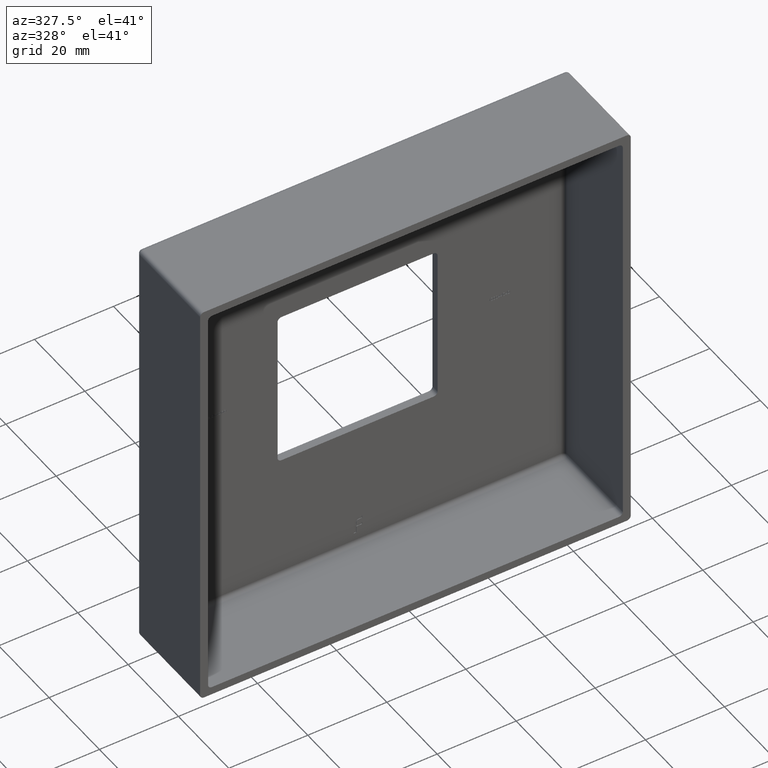
[diagram: clean part render]
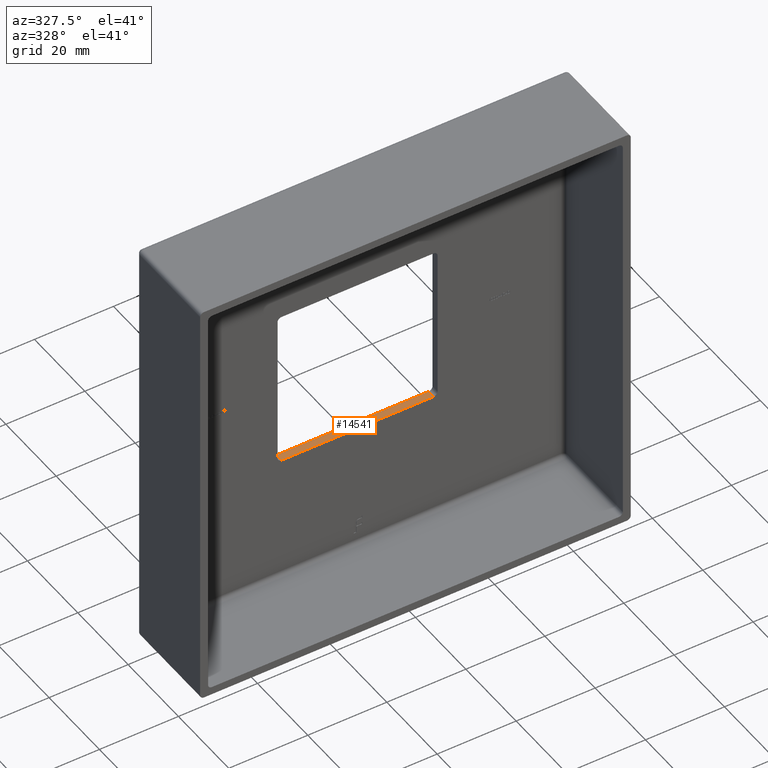
[diagram: same view with one face highlighted and labeled with its STEP entity id]
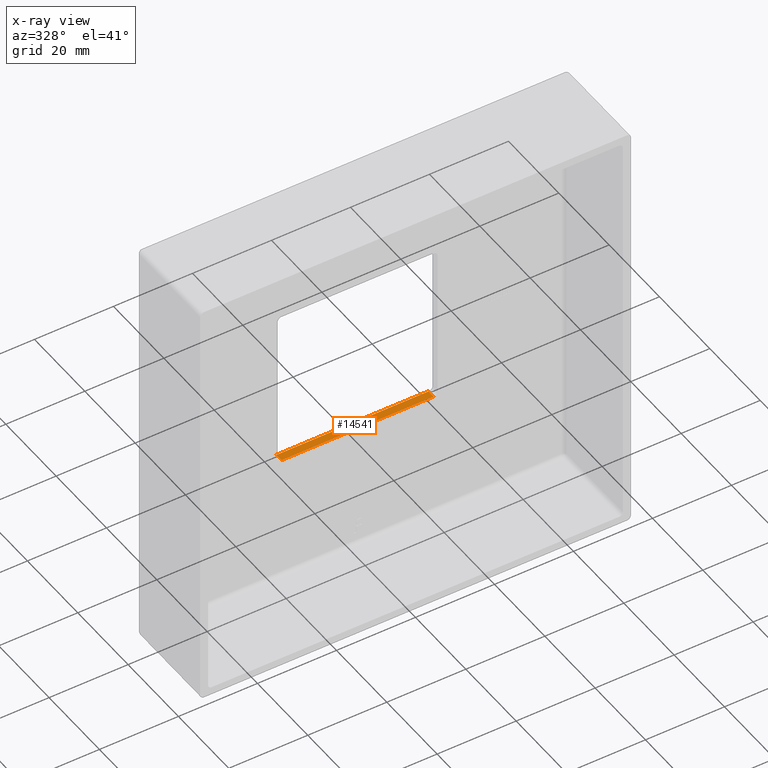
[diagram: x-ray of the same camera — body ghosted, the highlighted face saturated]
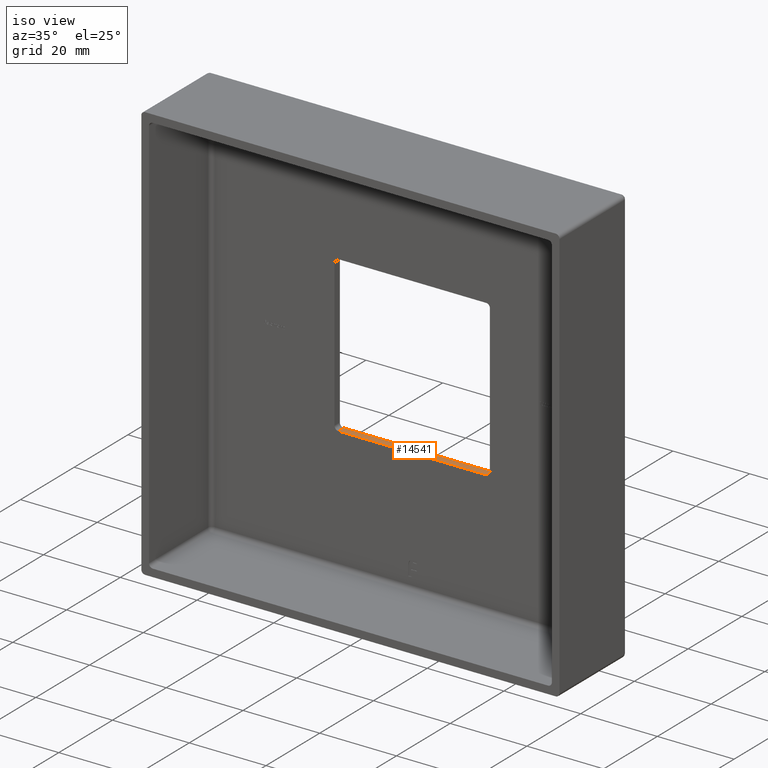
[diagram: same view with one face highlighted and labeled with its STEP entity id]
A machine part, auxiliary view. The second image highlights one B-rep face of the part: STEP entity #14541.
The next image is the same camera in x-ray: the body ghosted, the highlighted face saturated — about 0% of this face is hidden behind the body in this view.
A second angle (iso view) of the same face is appended — the face is thin or edge-on in the first view.
In plain terms, the highlighted planar face has unit normal (0, 0, -1).
Its self-contained STEP definition (entity closure, byte-faithful):
#667 = PLANE ( 'NONE',  #13082 ) ;
#719 = DIRECTION ( 'NONE',  ( 0.000000000000000000, -1.000000000000000000, -0.000000000000000000 ) ) ;
#1125 = EDGE_LOOP ( 'NONE', ( #2488, #2747, #16316, #13529 ) ) ;
#1273 = EDGE_CURVE ( 'NONE', #6834, #15766, #7363, .T. ) ;
#2488 = ORIENTED_EDGE ( 'NONE', *, *, #15197, .F. ) ;
#2705 = CARTESIAN_POINT ( 'NONE',  ( 19.24999999999998934, 25.00000000000000000, -20.25000000000000355 ) ) ;
#2747 = ORIENTED_EDGE ( 'NONE', *, *, #3893, .T. ) ;
#3893 = EDGE_CURVE ( 'NONE', #5657, #6834, #14737, .T. ) ;
#4446 = CARTESIAN_POINT ( 'NONE',  ( -20.25000000000000355, 25.00000000000000000, -20.25000000000000355 ) ) ;
#5657 = VERTEX_POINT ( 'NONE', #11777 ) ;
#5968 = CARTESIAN_POINT ( 'NONE',  ( -19.25000000000000355, 23.00000000000000000, -20.25000000000000355 ) ) ;
#6834 = VERTEX_POINT ( 'NONE', #7346 ) ;
#6887 = CARTESIAN_POINT ( 'NONE',  ( -20.25000000000000355, 0.000000000000000000, -20.25000000000000355 ) ) ;
#6896 = LINE ( 'NONE', #7925, #8918 ) ;
#7346 = CARTESIAN_POINT ( 'NONE',  ( 19.24999999999998934, 25.00000000000000000, -20.25000000000000355 ) ) ;
#7363 = LINE ( 'NONE', #4446, #9956 ) ;
#7720 = FACE_OUTER_BOUND ( 'NONE', #1125, .T. ) ;
#7925 = CARTESIAN_POINT ( 'NONE',  ( 0.000000000000000000, 23.00000000000000000, -20.25000000000000355 ) ) ;
#8627 = CARTESIAN_POINT ( 'NONE',  ( -19.25000000000000355, 23.00000000000000000, -20.25000000000000355 ) ) ;
#8918 = VECTOR ( 'NONE', #13050, 1000.000000000000000 ) ;
#9352 = VERTEX_POINT ( 'NONE', #8627 ) ;
#9956 = VECTOR ( 'NONE', #14744, 1000.000000000000000 ) ;
#10004 = VECTOR ( 'NONE', #719, 1000.000000000000000 ) ;
#10603 = LINE ( 'NONE', #5968, #10004 ) ;
#10851 = EDGE_CURVE ( 'NONE', #15766, #9352, #10603, .T. ) ;
#11777 = CARTESIAN_POINT ( 'NONE',  ( 19.24999999999998934, 23.00000000000000000, -20.25000000000000355 ) ) ;
#11979 = DIRECTION ( 'NONE',  ( 0.000000000000000000, 0.000000000000000000, -1.000000000000000000 ) ) ;
#12306 = CARTESIAN_POINT ( 'NONE',  ( -19.25000000000000355, 25.00000000000000000, -20.25000000000000355 ) ) ;
#13049 = DIRECTION ( 'NONE',  ( -0.000000000000000000, 1.000000000000000000, 0.000000000000000000 ) ) ;
#13050 = DIRECTION ( 'NONE',  ( -1.000000000000000000, 0.000000000000000000, 0.000000000000000000 ) ) ;
#13082 = AXIS2_PLACEMENT_3D ( 'NONE', #6887, #11979, #15829 ) ;
#13529 = ORIENTED_EDGE ( 'NONE', *, *, #10851, .T. ) ;
#14541 = ADVANCED_FACE ( 'NONE', ( #7720 ), #667, .F. ) ;
#14737 = LINE ( 'NONE', #2705, #15533 ) ;
#14744 = DIRECTION ( 'NONE',  ( -1.000000000000000000, -0.000000000000000000, -0.000000000000000000 ) ) ;
#15197 = EDGE_CURVE ( 'NONE', #5657, #9352, #6896, .T. ) ;
#15533 = VECTOR ( 'NONE', #13049, 1000.000000000000000 ) ;
#15766 = VERTEX_POINT ( 'NONE', #12306 ) ;
#15829 = DIRECTION ( 'NONE',  ( -1.000000000000000000, 0.000000000000000000, -0.000000000000000000 ) ) ;
#16316 = ORIENTED_EDGE ( 'NONE', *, *, #1273, .T. ) ;